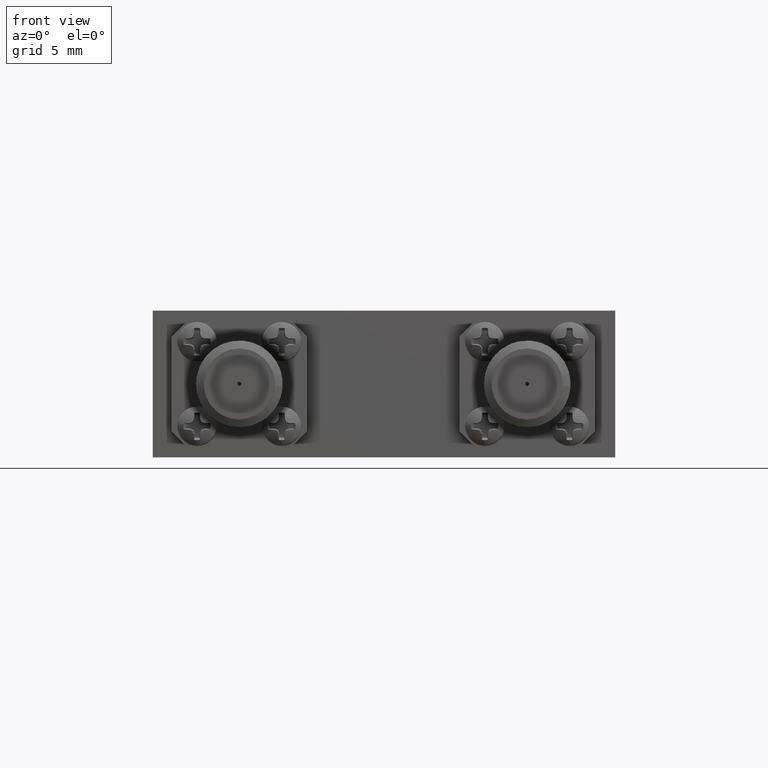
[diagram: clean part render]
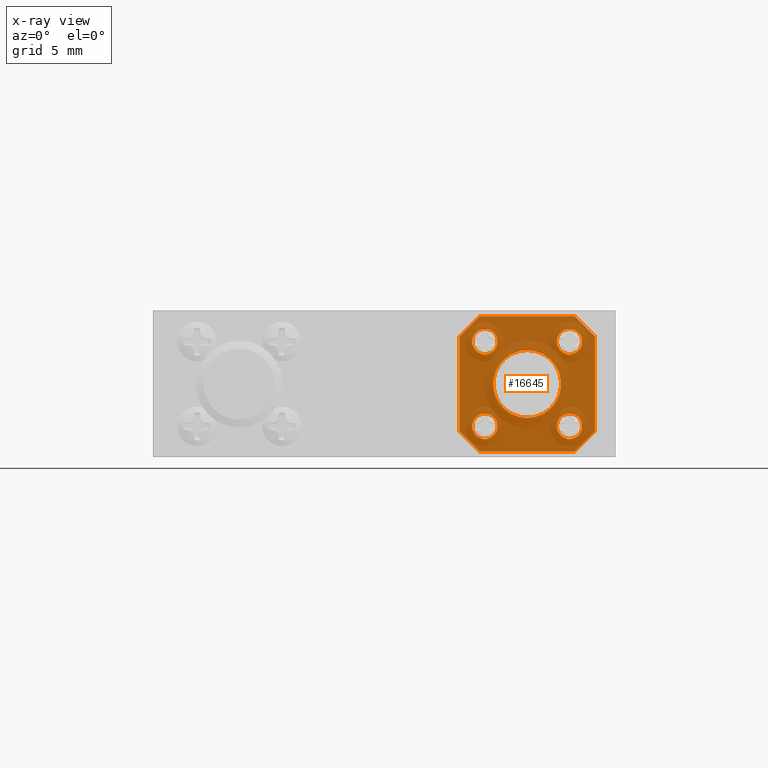
[diagram: x-ray — body ghosted, one internal face saturated and labeled with its STEP entity id]
A machine part, front view, then the same camera in x-ray: the body is ghosted and one INTERNAL B-rep face — a face not visible from any outside direction — is saturated and labeled: STEP entity #16645.
In plain terms, the highlighted planar face has unit normal (0, 1, 0).
Its self-contained STEP definition (entity closure, byte-faithful):
#71 = DIRECTION ( 'NONE',  ( 0.0000000000000000000, 0.0000000000000000000, 1.000000000000000000 ) ) ;
#199 = AXIS2_PLACEMENT_3D ( 'NONE', #34069, #72015, #77788 ) ;
#276 = DIRECTION ( 'NONE',  ( 0.0000000000000000000, 1.000000000000000000, 0.0000000000000000000 ) ) ;
#788 = DIRECTION ( 'NONE',  ( 0.0000000000000000000, 1.000000000000000000, 0.0000000000000000000 ) ) ;
#1398 = CARTESIAN_POINT ( 'NONE',  ( 0.6228346456692912500, 0.4380708661417322400, 0.3565354330708661000 ) ) ;
#2861 = LINE ( 'NONE', #26261, #24258 ) ;
#3272 = VERTEX_POINT ( 'NONE', #35019 ) ;
#3277 = EDGE_CURVE ( 'NONE', #46319, #45300, #52979, .T. ) ;
#3575 = DIRECTION ( 'NONE',  ( -0.0000000000000000000, -1.000000000000000000, -0.0000000000000000000 ) ) ;
#4273 = VERTEX_POINT ( 'NONE', #74732 ) ;
#4686 = CARTESIAN_POINT ( 'NONE',  ( 0.2978346456692913000, 0.4380708661417322400, 0.3790354330708661200 ) ) ;
#5380 = DIRECTION ( 'NONE',  ( 0.0000000000000000000, 0.0000000000000000000, 1.000000000000000000 ) ) ;
#6007 = CIRCLE ( 'NONE', #19323, 0.1000000000000000200 ) ;
#6356 = DIRECTION ( 'NONE',  ( 0.0000000000000000000, 1.000000000000000000, 0.0000000000000000000 ) ) ;
#7133 = DIRECTION ( 'NONE',  ( 0.0000000000000000000, 1.000000000000000000, 0.0000000000000000000 ) ) ;
#7142 = ORIENTED_EDGE ( 'NONE', *, *, #43119, .T. ) ;
#7290 = LINE ( 'NONE', #29323, #69744 ) ;
#7788 = ORIENTED_EDGE ( 'NONE', *, *, #24280, .T. ) ;
#8875 = LINE ( 'NONE', #19975, #69382 ) ;
#9014 = VECTOR ( 'NONE', #31256, 39.37007874015748100 ) ;
#9229 = CARTESIAN_POINT ( 'NONE',  ( 0.2978346456692913000, 0.4380708661417322400, 0.3040354330708661100 ) ) ;
#10474 = EDGE_CURVE ( 'NONE', #11015, #61868, #6007, .T. ) ;
#10650 = CARTESIAN_POINT ( 'NONE',  ( 0.4228346456692912400, 0.4380708661417322400, 0.2165354330708660600 ) ) ;
#10726 = CARTESIAN_POINT ( 'NONE',  ( 0.4228346456692912400, 0.4380708661417322400, 0.2165354330708660600 ) ) ;
#11015 = VERTEX_POINT ( 'NONE', #12748 ) ;
#11046 = ORIENTED_EDGE ( 'NONE', *, *, #46447, .F. ) ;
#11056 = EDGE_CURVE ( 'NONE', #46319, #35218, #43075, .T. ) ;
#11456 = ORIENTED_EDGE ( 'NONE', *, *, #3277, .F. ) ;
#11550 = ORIENTED_EDGE ( 'NONE', *, *, #12051, .T. ) ;
#11948 = CIRCLE ( 'NONE', #25708, 0.03750000000000001200 ) ;
#11987 = ORIENTED_EDGE ( 'NONE', *, *, #48250, .T. ) ;
#12051 = EDGE_CURVE ( 'NONE', #4273, #45300, #45903, .T. ) ;
#12218 = CARTESIAN_POINT ( 'NONE',  ( 0.2978346456692913000, 0.4380708661417322400, 0.3415354330708660900 ) ) ;
#12706 = AXIS2_PLACEMENT_3D ( 'NONE', #33797, #34588, #46332 ) ;
#12748 = CARTESIAN_POINT ( 'NONE',  ( 0.4228346456692912400, 0.4380708661417322400, 0.3165354330708660700 ) ) ;
#12919 = CARTESIAN_POINT ( 'NONE',  ( 0.5478346456692913000, 0.4380708661417322400, 0.05403543307086611900 ) ) ;
#12971 = AXIS2_PLACEMENT_3D ( 'NONE', #31161, #57063, #69656 ) ;
#13172 = CARTESIAN_POINT ( 'NONE',  ( 0.2228346456692911500, 0.4380708661417322400, 0.3565354330708658300 ) ) ;
#13262 = VERTEX_POINT ( 'NONE', #13172 ) ;
#13351 = CIRCLE ( 'NONE', #24234, 0.03750000000000001200 ) ;
#13499 = ORIENTED_EDGE ( 'NONE', *, *, #37450, .T. ) ;
#15330 = ORIENTED_EDGE ( 'NONE', *, *, #79490, .F. ) ;
#15723 = AXIS2_PLACEMENT_3D ( 'NONE', #31197, #68081, #44012 ) ;
#15776 = VERTEX_POINT ( 'NONE', #1398 ) ;
#16645 = ADVANCED_FACE ( 'NONE', ( #46378, #45379, #27862, #60023, #49258, #74720 ), #31301, .F. ) ;
#16687 = DIRECTION ( 'NONE',  ( -0.0000000000000000000, -1.000000000000000000, -0.0000000000000000000 ) ) ;
#17870 = CARTESIAN_POINT ( 'NONE',  ( 0.6228346456692912500, 0.4380708661417322400, 0.07653543307086622900 ) ) ;
#18501 = ORIENTED_EDGE ( 'NONE', *, *, #61876, .T. ) ;
#19323 = AXIS2_PLACEMENT_3D ( 'NONE', #10650, #3575, #54530 ) ;
#19975 = CARTESIAN_POINT ( 'NONE',  ( 0.6228346456692912500, 0.4380708661417322400, 0.4165354330708659900 ) ) ;
#20768 = VERTEX_POINT ( 'NONE', #25237 ) ;
#21421 = VECTOR ( 'NONE', #5380, 39.37007874015748100 ) ;
#21977 = CARTESIAN_POINT ( 'NONE',  ( 0.6228346456692912500, 0.4380708661417322400, 0.3565354330708661000 ) ) ;
#22377 = EDGE_CURVE ( 'NONE', #4273, #13262, #77122, .T. ) ;
#24234 = AXIS2_PLACEMENT_3D ( 'NONE', #12218, #788, #43802 ) ;
#24258 = VECTOR ( 'NONE', #31987, 39.37007874015748100 ) ;
#24280 = EDGE_CURVE ( 'NONE', #68097, #72142, #13351, .T. ) ;
#25017 = DIRECTION ( 'NONE',  ( 0.0000000000000000000, 1.000000000000000000, 0.0000000000000000000 ) ) ;
#25237 = CARTESIAN_POINT ( 'NONE',  ( 0.5478346456692913000, 0.4380708661417322400, 0.3790354330708661200 ) ) ;
#25644 = CARTESIAN_POINT ( 'NONE',  ( 0.2978346456692913000, 0.4380708661417322400, 0.09153543307086613200 ) ) ;
#25708 = AXIS2_PLACEMENT_3D ( 'NONE', #50346, #25017, #62663 ) ;
#26261 = CARTESIAN_POINT ( 'NONE',  ( 0.6228346456692912500, 0.4380708661417322400, 0.4165354330708659900 ) ) ;
#27302 = EDGE_CURVE ( 'NONE', #37865, #13262, #7290, .T. ) ;
#27546 = AXIS2_PLACEMENT_3D ( 'NONE', #69087, #6356, #76793 ) ;
#27596 = ORIENTED_EDGE ( 'NONE', *, *, #38806, .F. ) ;
#27862 = FACE_BOUND ( 'NONE', #42470, .T. ) ;
#29323 = CARTESIAN_POINT ( 'NONE',  ( 0.2828346456692913400, 0.4380708661417322400, 0.4165354330708661000 ) ) ;
#30346 = EDGE_LOOP ( 'NONE', ( #13499, #80364 ) ) ;
#30646 = VERTEX_POINT ( 'NONE', #33969 ) ;
#31161 = CARTESIAN_POINT ( 'NONE',  ( 0.5478346456692913000, 0.4380708661417322400, 0.09153543307086610400 ) ) ;
#31197 = CARTESIAN_POINT ( 'NONE',  ( 0.5478346456692913000, 0.4380708661417322400, 0.3415354330708660900 ) ) ;
#31256 = DIRECTION ( 'NONE',  ( 0.7071067811865460200, -0.0000000000000000000, 0.7071067811865490200 ) ) ;
#31301 = PLANE ( 'NONE',  #35877 ) ;
#31987 = DIRECTION ( 'NONE',  ( 1.000000000000000000, -0.0000000000000000000, -1.707404996040164300E-016 ) ) ;
#32733 = ORIENTED_EDGE ( 'NONE', *, *, #42286, .T. ) ;
#33344 = CIRCLE ( 'NONE', #42629, 0.1000000000000000200 ) ;
#33601 = ORIENTED_EDGE ( 'NONE', *, *, #10474, .F. ) ;
#33797 = CARTESIAN_POINT ( 'NONE',  ( 0.5478346456692913000, 0.4380708661417322400, 0.09153543307086610400 ) ) ;
#33969 = CARTESIAN_POINT ( 'NONE',  ( 0.2978346456692913000, 0.4380708661417322400, 0.05403543307086613300 ) ) ;
#34069 = CARTESIAN_POINT ( 'NONE',  ( 0.2978346456692913000, 0.4380708661417322400, 0.3415354330708660900 ) ) ;
#34588 = DIRECTION ( 'NONE',  ( 0.0000000000000000000, 1.000000000000000000, 0.0000000000000000000 ) ) ;
#34953 = CIRCLE ( 'NONE', #27546, 0.03750000000000001200 ) ;
#35019 = CARTESIAN_POINT ( 'NONE',  ( 0.2978346456692913000, 0.4380708661417322400, 0.1290354330708661500 ) ) ;
#35030 = CIRCLE ( 'NONE', #12706, 0.03749999999999997800 ) ;
#35218 = VERTEX_POINT ( 'NONE', #17870 ) ;
#35235 = ORIENTED_EDGE ( 'NONE', *, *, #27302, .T. ) ;
#35877 = AXIS2_PLACEMENT_3D ( 'NONE', #74752, #276, #43845 ) ;
#36360 = VECTOR ( 'NONE', #78740, 39.37007874015748100 ) ;
#36926 = VECTOR ( 'NONE', #71927, 39.37007874015748900 ) ;
#37450 = EDGE_CURVE ( 'NONE', #20768, #80143, #77202, .T. ) ;
#37722 = ORIENTED_EDGE ( 'NONE', *, *, #22377, .F. ) ;
#37865 = VERTEX_POINT ( 'NONE', #74548 ) ;
#37991 = VERTEX_POINT ( 'NONE', #45280 ) ;
#38806 = EDGE_CURVE ( 'NONE', #37865, #37991, #2861, .T. ) ;
#38807 = ORIENTED_EDGE ( 'NONE', *, *, #40138, .T. ) ;
#39322 = CARTESIAN_POINT ( 'NONE',  ( 0.5478346456692913000, 0.4380708661417322400, 0.1290354330708660700 ) ) ;
#40138 = EDGE_CURVE ( 'NONE', #30646, #3272, #54596, .T. ) ;
#42005 = VECTOR ( 'NONE', #43373, 39.37007874015748100 ) ;
#42286 = EDGE_CURVE ( 'NONE', #3272, #30646, #34953, .T. ) ;
#42470 = EDGE_LOOP ( 'NONE', ( #32733, #38807 ) ) ;
#42629 = AXIS2_PLACEMENT_3D ( 'NONE', #10726, #16687, #66085 ) ;
#43075 = LINE ( 'NONE', #66792, #9014 ) ;
#43119 = EDGE_CURVE ( 'NONE', #43184, #77285, #60251, .T. ) ;
#43184 = VERTEX_POINT ( 'NONE', #39322 ) ;
#43373 = DIRECTION ( 'NONE',  ( 0.7071067811865491300, -0.0000000000000000000, -0.7071067811865459100 ) ) ;
#43802 = DIRECTION ( 'NONE',  ( 0.0000000000000000000, 0.0000000000000000000, 1.000000000000000000 ) ) ;
#43845 = DIRECTION ( 'NONE',  ( 0.0000000000000000000, 0.0000000000000000000, 1.000000000000000000 ) ) ;
#44012 = DIRECTION ( 'NONE',  ( 0.0000000000000000000, 0.0000000000000000000, 1.000000000000000000 ) ) ;
#45280 = CARTESIAN_POINT ( 'NONE',  ( 0.5628346456692910900, 0.4380708661417322400, 0.4165354330708659900 ) ) ;
#45300 = VERTEX_POINT ( 'NONE', #76754 ) ;
#45379 = FACE_BOUND ( 'NONE', #79512, .T. ) ;
#45903 = LINE ( 'NONE', #75361, #42005 ) ;
#46319 = VERTEX_POINT ( 'NONE', #48577 ) ;
#46332 = DIRECTION ( 'NONE',  ( 0.0000000000000000000, 0.0000000000000000000, 1.000000000000000000 ) ) ;
#46378 = FACE_OUTER_BOUND ( 'NONE', #79381, .T. ) ;
#46447 = EDGE_CURVE ( 'NONE', #15776, #35218, #8875, .T. ) ;
#47805 = EDGE_CURVE ( 'NONE', #72142, #68097, #76075, .T. ) ;
#48250 = EDGE_CURVE ( 'NONE', #15776, #37991, #56420, .T. ) ;
#48577 = CARTESIAN_POINT ( 'NONE',  ( 0.5628346456692913100, 0.4380708661417322400, 0.01653543307086601300 ) ) ;
#49258 = FACE_BOUND ( 'NONE', #30346, .T. ) ;
#49478 = CARTESIAN_POINT ( 'NONE',  ( 0.2228346456692911500, 0.4380708661417322400, 0.4165354330708661000 ) ) ;
#50346 = CARTESIAN_POINT ( 'NONE',  ( 0.5478346456692913000, 0.4380708661417322400, 0.3415354330708660900 ) ) ;
#51179 = EDGE_LOOP ( 'NONE', ( #33601, #15330 ) ) ;
#52979 = LINE ( 'NONE', #53865, #36360 ) ;
#53865 = CARTESIAN_POINT ( 'NONE',  ( 0.6228346456692912500, 0.4380708661417322400, 0.01653543307086601300 ) ) ;
#54530 = DIRECTION ( 'NONE',  ( 0.0000000000000000000, 0.0000000000000000000, 1.000000000000000000 ) ) ;
#54596 = CIRCLE ( 'NONE', #61340, 0.03750000000000001200 ) ;
#54676 = ORIENTED_EDGE ( 'NONE', *, *, #11056, .T. ) ;
#56420 = LINE ( 'NONE', #21977, #36926 ) ;
#57063 = DIRECTION ( 'NONE',  ( 0.0000000000000000000, 1.000000000000000000, 0.0000000000000000000 ) ) ;
#60023 = FACE_BOUND ( 'NONE', #74908, .T. ) ;
#60251 = CIRCLE ( 'NONE', #12971, 0.03749999999999997800 ) ;
#61232 = DIRECTION ( 'NONE',  ( -0.7071067811865466800, -0.0000000000000000000, -0.7071067811865483500 ) ) ;
#61340 = AXIS2_PLACEMENT_3D ( 'NONE', #25644, #7133, #71 ) ;
#61593 = CARTESIAN_POINT ( 'NONE',  ( 0.5478346456692913000, 0.4380708661417322400, 0.3040354330708661100 ) ) ;
#61868 = VERTEX_POINT ( 'NONE', #77523 ) ;
#61876 = EDGE_CURVE ( 'NONE', #77285, #43184, #35030, .T. ) ;
#62663 = DIRECTION ( 'NONE',  ( 0.0000000000000000000, 0.0000000000000000000, 1.000000000000000000 ) ) ;
#66085 = DIRECTION ( 'NONE',  ( 0.0000000000000000000, 0.0000000000000000000, 1.000000000000000000 ) ) ;
#66792 = CARTESIAN_POINT ( 'NONE',  ( 0.5628346456692913100, 0.4380708661417322400, 0.01653543307086601300 ) ) ;
#68081 = DIRECTION ( 'NONE',  ( 0.0000000000000000000, 1.000000000000000000, 0.0000000000000000000 ) ) ;
#68097 = VERTEX_POINT ( 'NONE', #9229 ) ;
#69087 = CARTESIAN_POINT ( 'NONE',  ( 0.2978346456692913000, 0.4380708661417322400, 0.09153543307086613200 ) ) ;
#69382 = VECTOR ( 'NONE', #75931, 39.37007874015748100 ) ;
#69656 = DIRECTION ( 'NONE',  ( 0.0000000000000000000, 0.0000000000000000000, 1.000000000000000000 ) ) ;
#69744 = VECTOR ( 'NONE', #61232, 39.37007874015748100 ) ;
#71927 = DIRECTION ( 'NONE',  ( -0.7071067811865486800, 0.0000000000000000000, 0.7071067811865462400 ) ) ;
#72015 = DIRECTION ( 'NONE',  ( 0.0000000000000000000, 1.000000000000000000, 0.0000000000000000000 ) ) ;
#72142 = VERTEX_POINT ( 'NONE', #4686 ) ;
#74548 = CARTESIAN_POINT ( 'NONE',  ( 0.2828346456692913400, 0.4380708661417322400, 0.4165354330708661000 ) ) ;
#74720 = FACE_BOUND ( 'NONE', #51179, .T. ) ;
#74732 = CARTESIAN_POINT ( 'NONE',  ( 0.2228346456692911500, 0.4380708661417322400, 0.07653543307086588300 ) ) ;
#74752 = CARTESIAN_POINT ( 'NONE',  ( 0.4228346456692912400, 0.4380708661417322400, 0.2165354330708660600 ) ) ;
#74908 = EDGE_LOOP ( 'NONE', ( #7142, #18501 ) ) ;
#75359 = ORIENTED_EDGE ( 'NONE', *, *, #47805, .T. ) ;
#75361 = CARTESIAN_POINT ( 'NONE',  ( 0.2228346456692911500, 0.4380708661417322400, 0.07653543307086588300 ) ) ;
#75931 = DIRECTION ( 'NONE',  ( 0.0000000000000000000, 0.0000000000000000000, -1.000000000000000000 ) ) ;
#76075 = CIRCLE ( 'NONE', #199, 0.03750000000000001200 ) ;
#76122 = EDGE_CURVE ( 'NONE', #80143, #20768, #11948, .T. ) ;
#76754 = CARTESIAN_POINT ( 'NONE',  ( 0.2828346456692913400, 0.4380708661417322400, 0.01653543307086604800 ) ) ;
#76793 = DIRECTION ( 'NONE',  ( 0.0000000000000000000, 0.0000000000000000000, 1.000000000000000000 ) ) ;
#77122 = LINE ( 'NONE', #49478, #21421 ) ;
#77202 = CIRCLE ( 'NONE', #15723, 0.03750000000000001200 ) ;
#77285 = VERTEX_POINT ( 'NONE', #12919 ) ;
#77523 = CARTESIAN_POINT ( 'NONE',  ( 0.4228346456692912400, 0.4380708661417322400, 0.1165354330708660600 ) ) ;
#77788 = DIRECTION ( 'NONE',  ( 0.0000000000000000000, 0.0000000000000000000, 1.000000000000000000 ) ) ;
#78740 = DIRECTION ( 'NONE',  ( -1.000000000000000000, 0.0000000000000000000, 8.537024980200821300E-017 ) ) ;
#79381 = EDGE_LOOP ( 'NONE', ( #11046, #11987, #27596, #35235, #37722, #11550, #11456, #54676 ) ) ;
#79490 = EDGE_CURVE ( 'NONE', #61868, #11015, #33344, .T. ) ;
#79512 = EDGE_LOOP ( 'NONE', ( #75359, #7788 ) ) ;
#80143 = VERTEX_POINT ( 'NONE', #61593 ) ;
#80364 = ORIENTED_EDGE ( 'NONE', *, *, #76122, .T. ) ;